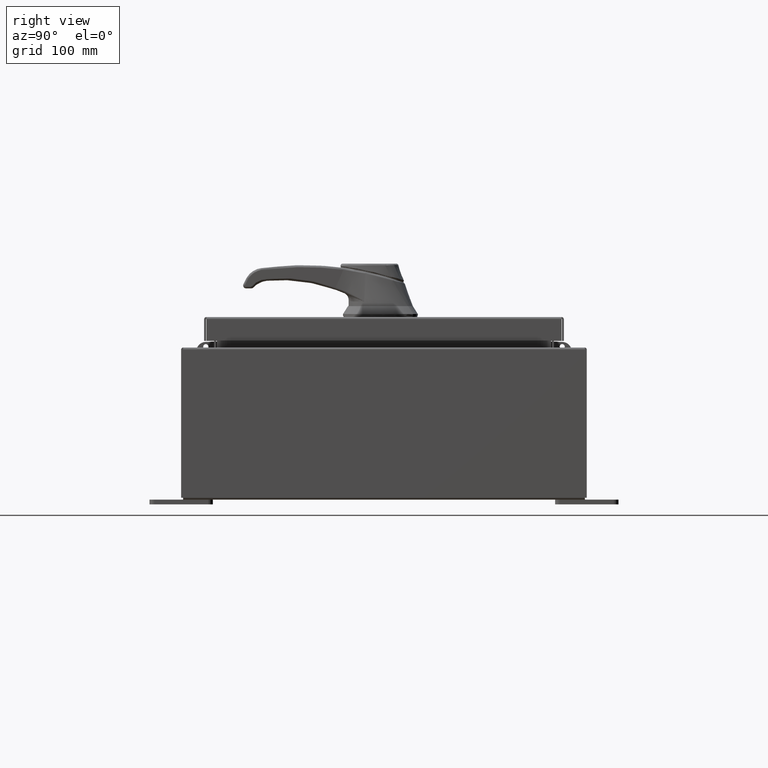
[diagram: clean part render]
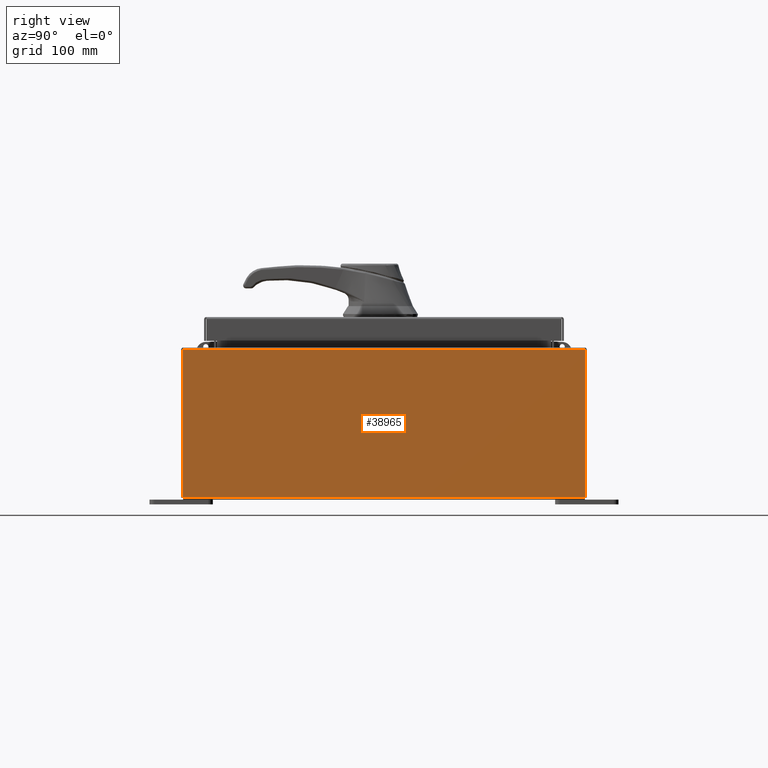
[diagram: same view with one face highlighted and labeled with its STEP entity id]
A machine part, right view. The second image highlights one B-rep face of the part: STEP entity #38965.
In plain terms, the highlighted planar face has unit normal (-1, 0, 0).
Its self-contained STEP definition (entity closure, byte-faithful):
#440 = CARTESIAN_POINT ( 'NONE',  ( 10.00000000000000000, 7.925300000000000000, -3.345627304943080600E-014 ) ) ;
#6647 = VECTOR ( 'NONE', #64591, 39.37007874015748100 ) ;
#6729 = CARTESIAN_POINT ( 'NONE',  ( 10.00000000000000000, -7.925300000000000000, 0.01299999999999986400 ) ) ;
#6994 = CARTESIAN_POINT ( 'NONE',  ( 10.00000000000000000, 7.925300000000000000, 0.01299999999999986400 ) ) ;
#9442 = CARTESIAN_POINT ( 'NONE',  ( 10.00000000000002000, 7.925300000000000000, 5.837600000000001000 ) ) ;
#10720 = LINE ( 'NONE', #440, #70909 ) ;
#14494 = DIRECTION ( 'NONE',  ( 3.319545939341922000E-015, 0.0000000000000000000, 1.000000000000000000 ) ) ;
#15991 = VERTEX_POINT ( 'NONE', #6994 ) ;
#18986 = LINE ( 'NONE', #105467, #103480 ) ;
#21201 = ORIENTED_EDGE ( 'NONE', *, *, #69890, .F. ) ;
#28913 = VECTOR ( 'NONE', #55772, 39.37007874015748100 ) ;
#31696 = EDGE_CURVE ( 'NONE', #64778, #54424, #33568, .T. ) ;
#33568 = LINE ( 'NONE', #86410, #6647 ) ;
#38965 = ADVANCED_FACE ( 'NONE', ( #94188 ), #55329, .F. ) ;
#39234 = LINE ( 'NONE', #6729, #28913 ) ;
#41097 = EDGE_CURVE ( 'NONE', #15991, #71402, #10720, .T. ) ;
#52367 = EDGE_LOOP ( 'NONE', ( #89554, #88259, #21201, #94445 ) ) ;
#52560 = EDGE_CURVE ( 'NONE', #71402, #64778, #18986, .T. ) ;
#52889 = CARTESIAN_POINT ( 'NONE',  ( 10.00000000000000000, -7.925300000000000000, 0.01299999999999985900 ) ) ;
#54424 = VERTEX_POINT ( 'NONE', #52889 ) ;
#55329 = PLANE ( 'NONE',  #100493 ) ;
#55772 = DIRECTION ( 'NONE',  ( -0.0000000000000000000, -1.000000000000000000, -0.0000000000000000000 ) ) ;
#63538 = DIRECTION ( 'NONE',  ( -1.000000000000000000, 0.0000000000000000000, 3.319545939341922000E-015 ) ) ;
#64591 = DIRECTION ( 'NONE',  ( -3.319545939341922800E-015, 0.0000000000000000000, -1.000000000000000000 ) ) ;
#64778 = VERTEX_POINT ( 'NONE', #81161 ) ;
#65846 = DIRECTION ( 'NONE',  ( 3.319545939341922800E-015, 0.0000000000000000000, 1.000000000000000000 ) ) ;
#69890 = EDGE_CURVE ( 'NONE', #15991, #54424, #39234, .T. ) ;
#70909 = VECTOR ( 'NONE', #65846, 39.37007874015748100 ) ;
#71402 = VERTEX_POINT ( 'NONE', #9442 ) ;
#81161 = CARTESIAN_POINT ( 'NONE',  ( 10.00000000000002000, -7.925300000000000000, 5.837600000000001000 ) ) ;
#86410 = CARTESIAN_POINT ( 'NONE',  ( 10.00000000000000000, -7.925300000000000000, -3.345627304943080600E-014 ) ) ;
#88259 = ORIENTED_EDGE ( 'NONE', *, *, #31696, .T. ) ;
#89379 = DIRECTION ( 'NONE',  ( -0.0000000000000000000, -1.000000000000000000, -0.0000000000000000000 ) ) ;
#89554 = ORIENTED_EDGE ( 'NONE', *, *, #52560, .T. ) ;
#94188 = FACE_OUTER_BOUND ( 'NONE', #52367, .T. ) ;
#94445 = ORIENTED_EDGE ( 'NONE', *, *, #41097, .T. ) ;
#96066 = CARTESIAN_POINT ( 'NONE',  ( 10.00000000000000000, 0.0000000000000000000, -3.345627304943080600E-014 ) ) ;
#100493 = AXIS2_PLACEMENT_3D ( 'NONE', #96066, #63538, #14494 ) ;
#103480 = VECTOR ( 'NONE', #89379, 39.37007874015748100 ) ;
#105467 = CARTESIAN_POINT ( 'NONE',  ( 10.00000000000002000, 7.925300000000000000, 5.837600000000001000 ) ) ;